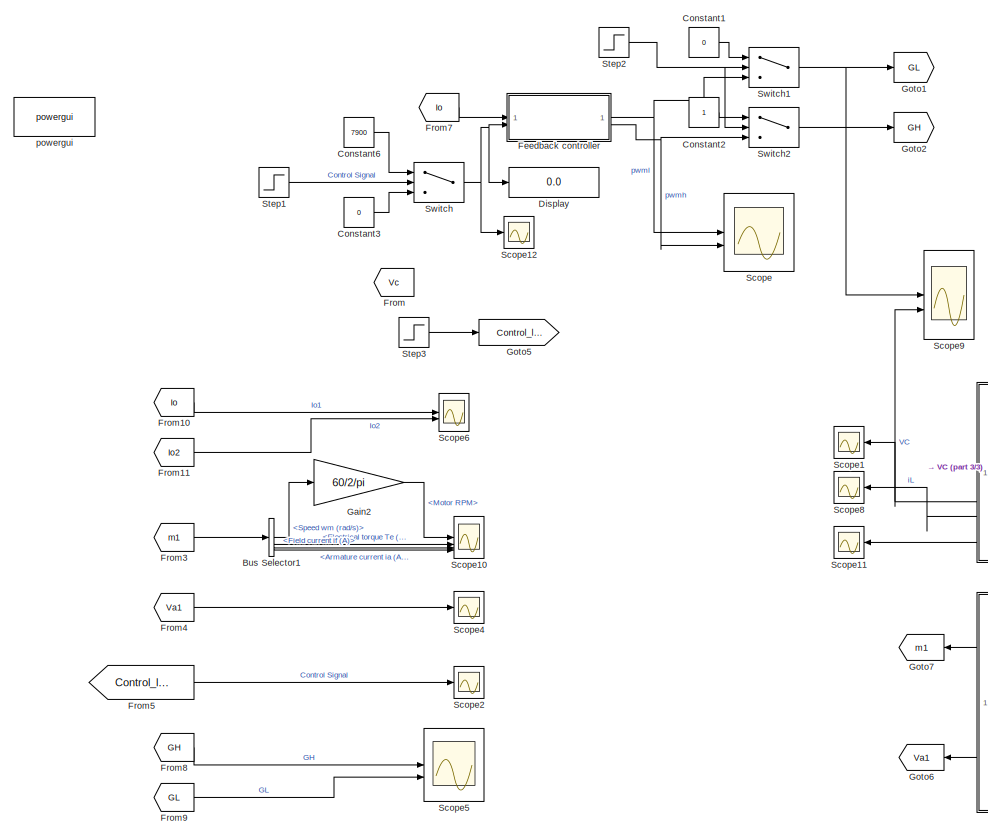
[diagram: root canvas - part 1/3, top left region]
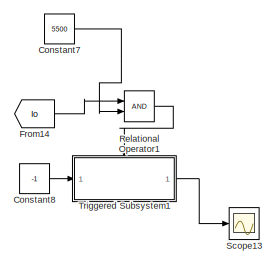
[diagram: root canvas - part 2/3, top right region]
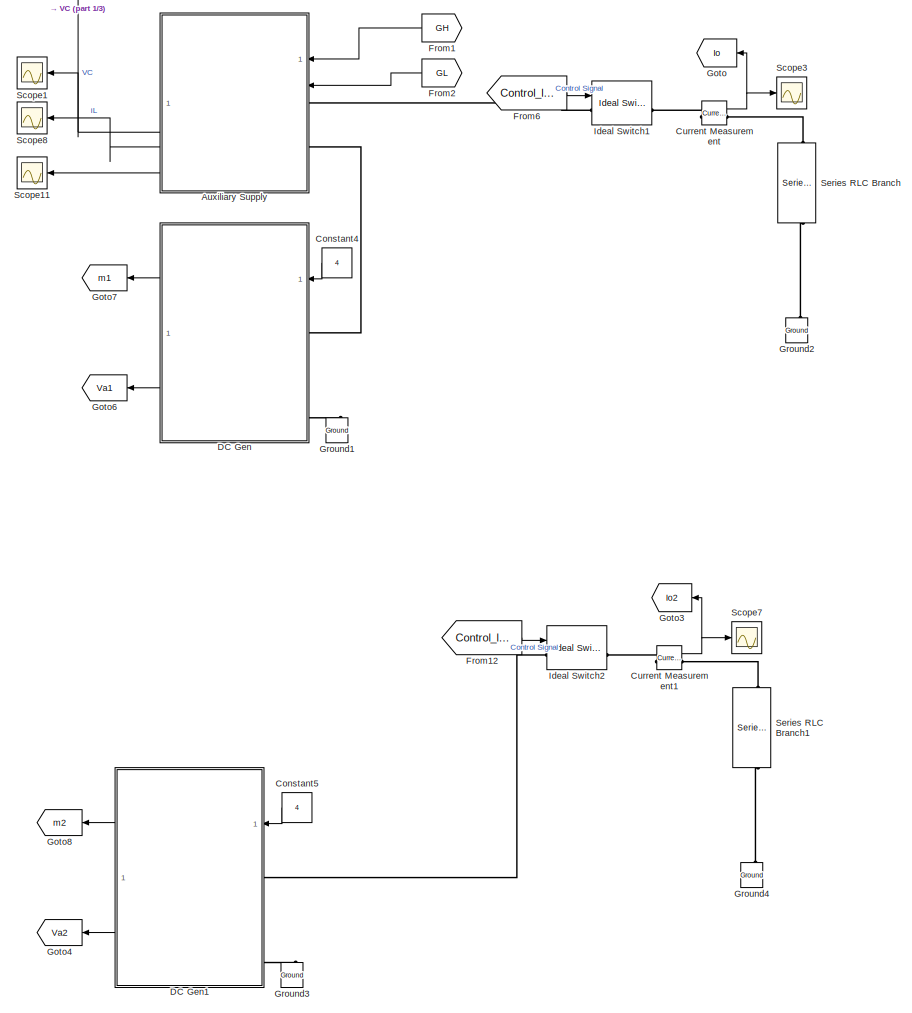
[diagram: root canvas - part 3/3, central region]
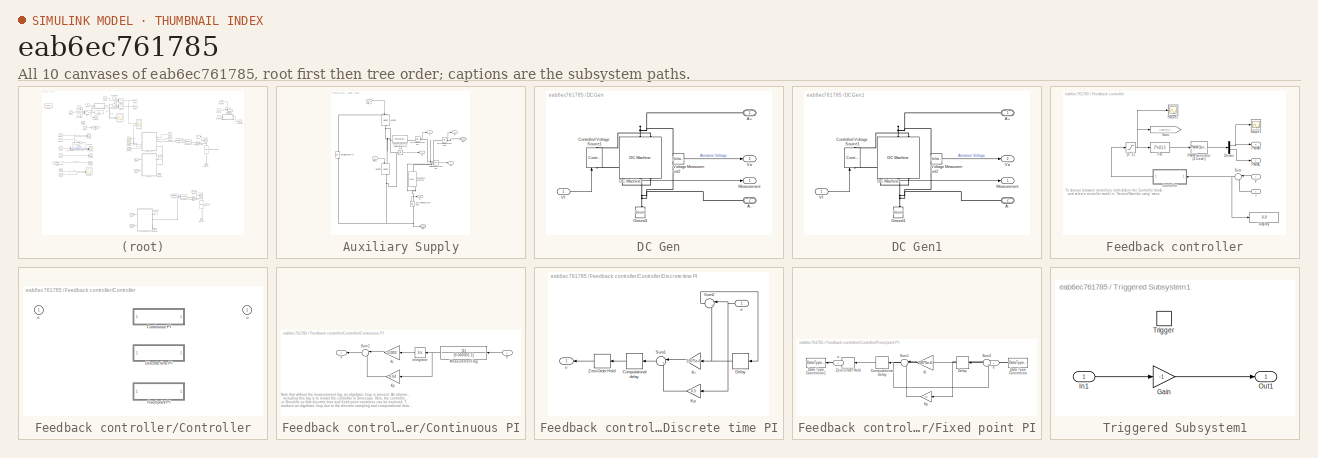
[diagram: thumbnail index - all 10 canvases of the model, root first then tree order]
MODEL slx_eab6ec761785
KIND model
CONFIG AbsTol = auto
CONFIG EnableMultiTasking = off
CONFIG FixedStep = auto
CONFIG MaxStep = auto
CONFIG MinStep = auto
CONFIG RelTol = 1e-3
CONFIG SampleTimeConstraint = Unconstrained
CONFIG SolverName = VariableStepAuto
CONFIG StartTime = 0.0
CONFIG StopTime = 20
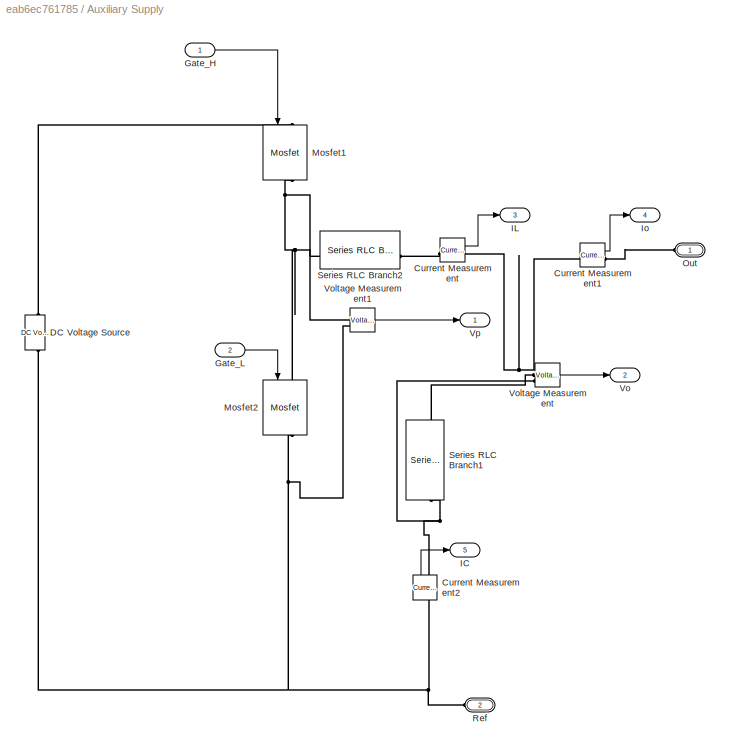
BLOCK [SubSystem] Auxiliary Supply
  NameLocation = top
BLOCK [Reference] Auxiliary Supply/Current Measurement  REF=spsCurrentMeasurementLib/Current Measurement
  LibrarySourceBlock = sps_lib/Sensors and Measurements/Current Measurement
  SourceBlock = spsCurrentMeasurementLib/Current Measurement
  SourceType = Current Measurement
  UserDataPersistent = on
BLOCK [Reference] Auxiliary Supply/Current Measurement1  REF=spsCurrentMeasurementLib/Current Measurement
  LibrarySourceBlock = sps_lib/Sensors and Measurements/Current Measurement
  SourceBlock = spsCurrentMeasurementLib/Current Measurement
  SourceType = Current Measurement
  UserDataPersistent = on
BLOCK [Reference] Auxiliary Supply/Current Measurement2  REF=spsCurrentMeasurementLib/Current Measurement
  LibrarySourceBlock = sps_lib/Sensors and Measurements/Current Measurement
  NameLocation = right
  SourceBlock = spsCurrentMeasurementLib/Current Measurement
  SourceType = Current Measurement
  UserDataPersistent = on
BLOCK [Reference] Auxiliary Supply/DC Voltage Source  REF=spsDCVoltageSourceLib/DC Voltage Source
  LibrarySourceBlock = sps_lib/Sources/DC Voltage Source
  SourceBlock = spsDCVoltageSourceLib/DC Voltage Source
  SourceType = DC Voltage Source
BLOCK [Inport] Auxiliary Supply/Gate_H
BLOCK [Inport] Auxiliary Supply/Gate_L
  Port = 2
BLOCK [Outport] Auxiliary Supply/IC
  Port = 5
BLOCK [Outport] Auxiliary Supply/IL
  Port = 3
BLOCK [Outport] Auxiliary Supply/Io
  Port = 4
BLOCK [Reference] Auxiliary Supply/Mosfet1  REF=spsMosfetLib/Mosfet
  NameLocation = left
  SourceBlock = spsMosfetLib/Mosfet
  SourceType = Mosfet
BLOCK [Reference] Auxiliary Supply/Mosfet2  REF=spsMosfetLib/Mosfet
  NameLocation = left
  SourceBlock = spsMosfetLib/Mosfet
  SourceType = Mosfet
BLOCK [PMIOPort] Auxiliary Supply/Out
  NameLocation = top
  Side = Left
BLOCK [PMIOPort] Auxiliary Supply/Ref
  NameLocation = top
  Port = 2
  Side = Left
BLOCK [Reference] Auxiliary Supply/Series RLC Branch1  REF=spsSeriesRLCBranchLib/Series RLC Branch
  LibrarySourceBlock = sps_lib/Passives/Series RLC Branch
  NameLocation = left
  SourceBlock = spsSeriesRLCBranchLib/Series RLC Branch
  SourceType = Series RLC Branch
BLOCK [Reference] Auxiliary Supply/Series RLC Branch2  REF=spsSeriesRLCBranchLib/Series RLC Branch
  LibrarySourceBlock = sps_lib/Passives/Series RLC Branch
  SourceBlock = spsSeriesRLCBranchLib/Series RLC Branch
  SourceType = Series RLC Branch
BLOCK [Outport] Auxiliary Supply/Vo
  Port = 2
BLOCK [Reference] Auxiliary Supply/Voltage Measurement  REF=spsVoltageMeasurementLib/Voltage Measurement
  LibrarySourceBlock = sps_lib/Sensors and Measurements/Voltage Measurement
  SourceBlock = spsVoltageMeasurementLib/Voltage Measurement
  SourceType = Voltage Measurement
  UserDataPersistent = on
BLOCK [Reference] Auxiliary Supply/Voltage Measurement1  REF=spsVoltageMeasurementLib/Voltage Measurement
  LibrarySourceBlock = sps_lib/Sensors and Measurements/Voltage Measurement
  SourceBlock = spsVoltageMeasurementLib/Voltage Measurement
  SourceType = Voltage Measurement
  UserDataPersistent = on
BLOCK [Outport] Auxiliary Supply/Vp
BLOCK [BusSelector] Bus Selector1
  OutputSignals = Speed wm (rad/s),Electrical torque Te (n m),Field current if (A),Armature current ia (A)
BLOCK [Constant] Constant1
  Value = 0
BLOCK [Constant] Constant2
BLOCK [Constant] Constant3
  Value = 0
BLOCK [Constant] Constant4
  NameLocation = top
  Value = 4
BLOCK [Constant] Constant5
  NameLocation = top
  Value = 4
BLOCK [Constant] Constant6
  Value = 7900
BLOCK [Constant] Constant7
  Value = 5500
BLOCK [Constant] Constant8
  Value = -1
BLOCK [Reference] Current Measurement  REF=spsCurrentMeasurementLib/Current Measurement
  LibrarySourceBlock = sps_lib/Sensors and Measurements/Current Measurement
  SourceBlock = spsCurrentMeasurementLib/Current Measurement
  SourceType = Current Measurement
  UserDataPersistent = on
BLOCK [Reference] Current Measurement1  REF=spsCurrentMeasurementLib/Current Measurement
  LibrarySourceBlock = sps_lib/Sensors and Measurements/Current Measurement
  SourceBlock = spsCurrentMeasurementLib/Current Measurement
  SourceType = Current Measurement
  UserDataPersistent = on
BLOCK [SubSystem] DC Gen
  NameLocation = top
BLOCK [PMIOPort] DC Gen/A+
  NameLocation = top
  Side = Left
BLOCK [PMIOPort] DC Gen/A-
  NameLocation = top
  Port = 2
  Side = Left
BLOCK [Reference] DC Gen/Controlled Voltage Source1  REF=spsControlledVoltageSourceLib/Controlled Voltage Source
  LibrarySourceBlock = sps_lib/Sources/Controlled Voltage Source
  NameLocation = right
  SourceBlock = spsControlledVoltageSourceLib/Controlled Voltage Source
  SourceType = Controlled Voltage Source
BLOCK [Reference] DC Gen/DC Machine1  REF=spsDCMachineLib/DC Machine
  LibrarySourceBlock = sps_lib/Electrical Machines/DC Machine
  NameLocation = left
  SourceBlock = spsDCMachineLib/DC Machine
  SourceType = DC machine
BLOCK [Reference] DC Gen/Ground1  REF=spsGroundLib/Ground
  LibrarySourceBlock = sps_lib/Utilities/Ground
  NameLocation = right
  SourceBlock = spsGroundLib/Ground
  SourceType = Ground
BLOCK [Outport] DC Gen/Measurement
BLOCK [Outport] DC Gen/Va
  Port = 2
BLOCK [Inport] DC Gen/Vf
BLOCK [Reference] DC Gen/Voltage Measurement2  REF=spsVoltageMeasurementLib/Voltage Measurement
  LibrarySourceBlock = sps_lib/Sensors and Measurements/Voltage Measurement
  SourceBlock = spsVoltageMeasurementLib/Voltage Measurement
  SourceType = Voltage Measurement
  UserDataPersistent = on
BLOCK [SubSystem] DC Gen1
  NameLocation = top
BLOCK [PMIOPort] DC Gen1/A+
  NameLocation = top
  Side = Left
BLOCK [PMIOPort] DC Gen1/A-
  NameLocation = top
  Port = 2
  Side = Left
BLOCK [Reference] DC Gen1/Controlled Voltage Source1  REF=spsControlledVoltageSourceLib/Controlled Voltage Source
  LibrarySourceBlock = sps_lib/Sources/Controlled Voltage Source
  NameLocation = right
  SourceBlock = spsControlledVoltageSourceLib/Controlled Voltage Source
  SourceType = Controlled Voltage Source
BLOCK [Reference] DC Gen1/DC Machine1  REF=spsDCMachineLib/DC Machine
  LibrarySourceBlock = sps_lib/Electrical Machines/DC Machine
  NameLocation = left
  SourceBlock = spsDCMachineLib/DC Machine
  SourceType = DC machine
BLOCK [Reference] DC Gen1/Ground1  REF=spsGroundLib/Ground
  LibrarySourceBlock = sps_lib/Utilities/Ground
  NameLocation = right
  SourceBlock = spsGroundLib/Ground
  SourceType = Ground
BLOCK [Outport] DC Gen1/Measurement
BLOCK [Outport] DC Gen1/Va
  Port = 2
BLOCK [Inport] DC Gen1/Vf
BLOCK [Reference] DC Gen1/Voltage Measurement2  REF=spsVoltageMeasurementLib/Voltage Measurement
  LibrarySourceBlock = sps_lib/Sensors and Measurements/Voltage Measurement
  SourceBlock = spsVoltageMeasurementLib/Voltage Measurement
  SourceType = Voltage Measurement
  UserDataPersistent = on
BLOCK [Display] Display
  Decimation = 1
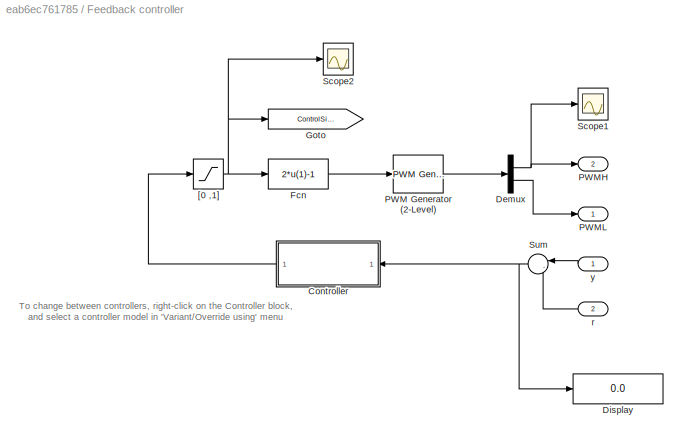
BLOCK [SubSystem] Feedback controller
  NameLocation = top
BLOCK [SubSystem] Feedback controller/Controller
  AttributesFormatString = %<BlockChoice>
  LabelModeActiveChoice = Variant1
  Variant = on
  VariantControlMode = label
BLOCK [SubSystem] Feedback controller/Controller/Continuous PI
  VariantControl = Variant1
BLOCK [Integrator] Feedback controller/Controller/Continuous PI/Integrator
BLOCK [Gain] Feedback controller/Controller/Continuous PI/Ki
  Gain = 0.003
BLOCK [Gain] Feedback controller/Controller/Continuous PI/Kp
  Gain = 0.04
BLOCK [TransferFcn] Feedback controller/Controller/Continuous PI/Measurement lag
  Denominator = [0.000001 1]
BLOCK [Sum] Feedback controller/Controller/Continuous PI/Sum1
  InputSameDT = on
  Inputs = |++
  OutDataTypeStr = Inherit: Same as first input
  SaturateOnIntegerOverflow = on
BLOCK [Inport] Feedback controller/Controller/Continuous PI/e
BLOCK [Outport] Feedback controller/Controller/Continuous PI/u
  VectorParamsAs1DForOutWhenUnconnected = off
BLOCK [SubSystem] Feedback controller/Controller/Discrete time PI
  VariantControl = Variant2
BLOCK [Delay] Feedback controller/Controller/Discrete time PI/Computational delay
  DelayLength = 1
  InputPortMap = u0
  SampleTime = 5e-6
BLOCK [Delay] Feedback controller/Controller/Discrete time PI/Delay
  DelayLength = 1
  InputPortMap = u0
  SampleTime = 5e-6
BLOCK [Gain] Feedback controller/Controller/Discrete time PI/Ki
  Gain = 200*5e-6
BLOCK [Gain] Feedback controller/Controller/Discrete time PI/Kp
  Gain = 0.5
BLOCK [Sum] Feedback controller/Controller/Discrete time PI/Sum1
  InputSameDT = on
  Inputs = |++
  OutDataTypeStr = Inherit: Same as first input
  SaturateOnIntegerOverflow = on
BLOCK [Sum] Feedback controller/Controller/Discrete time PI/Sum2
  InputSameDT = on
  Inputs = |++
  OutDataTypeStr = Inherit: Same as first input
  SaturateOnIntegerOverflow = on
BLOCK [ZeroOrderHold] Feedback controller/Controller/Discrete time PI/Zero-Order Hold
  SampleTime = 5e-6
BLOCK [Inport] Feedback controller/Controller/Discrete time PI/e
BLOCK [Outport] Feedback controller/Controller/Discrete time PI/u
  VectorParamsAs1DForOutWhenUnconnected = off
BLOCK [SubSystem] Feedback controller/Controller/Fixed point PI
  MinMaxOverflowLogging = MinMaxAndOverflow
  VariantControl = Variant3
BLOCK [Delay] Feedback controller/Controller/Fixed point PI/Computational delay
  DelayLength = 1
  InputPortMap = u0
  SampleTime = 5e-6
BLOCK [DataTypeConversion] Feedback controller/Controller/Fixed point PI/Data Type Conversion
  OutDataTypeStr = fixdt(1,16,11)
  RndMeth = Nearest
  SaturateOnIntegerOverflow = off
BLOCK [DataTypeConversion] Feedback controller/Controller/Fixed point PI/Data Type Conversion1
  OutDataTypeStr = double
  RndMeth = Nearest
  SaturateOnIntegerOverflow = off
BLOCK [Delay] Feedback controller/Controller/Fixed point PI/Delay
  DelayLength = 1
  InputPortMap = u0
  SampleTime = 5e-6
BLOCK [Gain] Feedback controller/Controller/Fixed point PI/Ki
  Gain = 200*5e-6
  OutDataTypeStr = fixdt(1,16,13)
  RndMeth = Nearest
BLOCK [Gain] Feedback controller/Controller/Fixed point PI/Kp
  Gain = 0.5
  OutDataTypeStr = fixdt(1,16,9)
  RndMeth = Nearest
BLOCK [Sum] Feedback controller/Controller/Fixed point PI/Sum1
  Inputs = |++
  SaturateOnIntegerOverflow = on
BLOCK [Sum] Feedback controller/Controller/Fixed point PI/Sum2
  InputSameDT = on
  Inputs = |++
  OutDataTypeStr = Inherit: Same as first input
  SaturateOnIntegerOverflow = on
BLOCK [ZeroOrderHold] Feedback controller/Controller/Fixed point PI/Zero-Order Hold
  SampleTime = 5e-6
BLOCK [Inport] Feedback controller/Controller/Fixed point PI/e
BLOCK [Outport] Feedback controller/Controller/Fixed point PI/u
  VectorParamsAs1DForOutWhenUnconnected = off
BLOCK [Inport] Feedback controller/Controller/e
BLOCK [Outport] Feedback controller/Controller/u
  VectorParamsAs1DForOutWhenUnconnected = off
BLOCK [Demux] Feedback controller/Demux
  Outputs = 2
BLOCK [Display] Feedback controller/Display
  Decimation = 1
BLOCK [Fcn] Feedback controller/Fcn
  Expr = 2*u(1)-1
BLOCK [Goto] Feedback controller/Goto
  GotoTag = ControlSignal
  TagVisibility = global
BLOCK [Reference] Feedback controller/PWM Generator (2-Level)  REF=spsPWMGenerator2LevelLib/PWM Generator
(2-Level)
  SourceBlock = spsPWMGenerator2LevelLib/PWM Generator\n(2-Level)
  SourceType = PWM Generator (2-Level)
BLOCK [Outport] Feedback controller/PWMH
  Port = 2
  VectorParamsAs1DForOutWhenUnconnected = off
BLOCK [Outport] Feedback controller/PWML
  VectorParamsAs1DForOutWhenUnconnected = off
BLOCK [Scope] Feedback controller/Scope1
  Floating = off
  NumInputPorts = 1
  ScopeSpecificationString = Simulink.scopes.TimeScopeBlockCfg('CurrentConfiguration', extmgr.ConfigurationSet(extmgr.Configuration('Core','General UI',true),extmgr.Configuration('Core','Source UI',true),extmgr.Configuration('Sources','WiredSimulink',true,'DataLoggingVariableName','ScopeData7'),extmgr.Configuration('Visuals','Time Domain',true,'SerializedDisplays',{struct('MinYLimReal','-0.125','MaxYLimReal','1.125','YLabelRe...<+1398ch>
BLOCK [Scope] Feedback controller/Scope2
  Floating = off
  NumInputPorts = 1
  ScopeSpecificationString = Simulink.scopes.TimeScopeBlockCfg('CurrentConfiguration', extmgr.ConfigurationSet(extmgr.Configuration('Core','General UI',true),extmgr.Configuration('Core','Source UI',true),extmgr.Configuration('Sources','WiredSimulink',true,'DataLoggingVariableName','ScopeData10'),extmgr.Configuration('Visuals','Time Domain',true,'SerializedDisplays',{struct('MinYLimReal','-0.02578','MaxYLimReal','0.23204','YLa...<+1413ch>
BLOCK [Sum] Feedback controller/Sum
  InputSameDT = on
  Inputs = |-+
  OutDataTypeStr = Inherit: Same as first input
  SaturateOnIntegerOverflow = on
BLOCK [Saturate] Feedback controller/[0 ,1]
  LowerLimit = 0
  UpperLimit = 1
BLOCK [Inport] Feedback controller/r
  Port = 2
BLOCK [Inport] Feedback controller/y
BLOCK [From] From
  GotoTag = Vc
BLOCK [From] From1
  GotoTag = GH
  NameLocation = top
BLOCK [From] From10
  GotoTag = Io
BLOCK [From] From11
  GotoTag = Io2
BLOCK [From] From12
  GotoTag = Control_load
BLOCK [From] From14
  GotoTag = Io
BLOCK [From] From2
  GotoTag = GL
  NameLocation = top
BLOCK [From] From3
  GotoTag = m1
BLOCK [From] From4
  GotoTag = Va1
BLOCK [From] From5
  GotoTag = Control_load
BLOCK [From] From6
  GotoTag = Control_load
BLOCK [From] From7
  GotoTag = Io
BLOCK [From] From8
  GotoTag = GH
BLOCK [From] From9
  GotoTag = GL
BLOCK [Gain] Gain2
  Gain = 60/2/pi
BLOCK [Goto] Goto
  GotoTag = Io
BLOCK [Goto] Goto1
  GotoTag = GL
BLOCK [Goto] Goto2
  GotoTag = GH
BLOCK [Goto] Goto3
  GotoTag = Io2
BLOCK [Goto] Goto4
  GotoTag = Va2
  NameLocation = top
BLOCK [Goto] Goto5
  GotoTag = Control_load
BLOCK [Goto] Goto6
  GotoTag = Va1
  NameLocation = top
BLOCK [Goto] Goto7
  GotoTag = m1
  NameLocation = top
BLOCK [Goto] Goto8
  GotoTag = m2
  NameLocation = top
BLOCK [Reference] Ground1  REF=spsGroundLib/Ground
  LibrarySourceBlock = sps_lib/Utilities/Ground
  NameLocation = right
  SourceBlock = spsGroundLib/Ground
  SourceType = Ground
BLOCK [Reference] Ground2  REF=spsGroundLib/Ground
  LibrarySourceBlock = sps_lib/Utilities/Ground
  NameLocation = right
  SourceBlock = spsGroundLib/Ground
  SourceType = Ground
BLOCK [Reference] Ground3  REF=spsGroundLib/Ground
  LibrarySourceBlock = sps_lib/Utilities/Ground
  NameLocation = right
  SourceBlock = spsGroundLib/Ground
  SourceType = Ground
BLOCK [Reference] Ground4  REF=spsGroundLib/Ground
  LibrarySourceBlock = sps_lib/Utilities/Ground
  NameLocation = right
  SourceBlock = spsGroundLib/Ground
  SourceType = Ground
BLOCK [Reference] Ideal Switch1  REF=spsIdealSwitchLib/Ideal Switch
  LibrarySourceBlock = sps_lib/Power Electronics/Ideal Switch
  SourceBlock = spsIdealSwitchLib/Ideal Switch
  SourceType = Ideal Switch
BLOCK [Reference] Ideal Switch2  REF=spsIdealSwitchLib/Ideal Switch
  LibrarySourceBlock = sps_lib/Power Electronics/Ideal Switch
  SourceBlock = spsIdealSwitchLib/Ideal Switch
  SourceType = Ideal Switch
BLOCK [RelationalOperator] Relational Operator1
  InputSameDT = off
  OutDataTypeStr = boolean
  RndMeth = Simplest
BLOCK [Scope] Scope
  Floating = off
  NumInputPorts = 2
  ScopeSpecificationString = Simulink.scopes.TimeScopeBlockCfg('CurrentConfiguration', extmgr.ConfigurationSet(extmgr.Configuration('Core','General UI',true),extmgr.Configuration('Core','Source UI',true),extmgr.Configuration('Sources','WiredSimulink',true,'DataLoggingVariableName','ScopeData1'),extmgr.Configuration('Visuals','Time Domain',true,'SerializedDisplays',{struct('MinYLimReal','-0.125','MaxYLimReal','1.125','YLabelRe...<+1433ch>
BLOCK [Scope] Scope1
  Floating = off
  NameLocation = top
  NumInputPorts = 1
  ScopeSpecificationString = Simulink.scopes.TimeScopeBlockCfg('CurrentConfiguration', extmgr.ConfigurationSet(extmgr.Configuration('Core','General UI',true),extmgr.Configuration('Core','Source UI',true),extmgr.Configuration('Sources','WiredSimulink',true,'DataLoggingVariableName','ScopeData2'),extmgr.Configuration('Visuals','Time Domain',true,'SerializedDisplays',{struct('MinYLimReal','-228.16468','MaxYLimReal','1136.63704',...<+1421ch>
BLOCK [Scope] Scope10
  Floating = off
  NumInputPorts = 4
  ScopeSpecificationString = Simulink.scopes.TimeScopeBlockCfg('CurrentConfiguration', extmgr.ConfigurationSet(extmgr.Configuration('Core','General UI',true,'FigureColor',[0 0 0]),extmgr.Configuration('Core','Source UI',true),extmgr.Configuration('Sources','WiredSimulink',true,'DataLoggingVariableName','ScopeData9'),extmgr.Configuration('Visuals','Time Domain',true,'SerializedDisplays',{struct('MinYLimReal','-1910.47474','Max...<+3564ch>
BLOCK [Scope] Scope11
  Floating = off
  NameLocation = top
  NumInputPorts = 1
  ScopeSpecificationString = Simulink.scopes.TimeScopeBlockCfg('CurrentConfiguration', extmgr.ConfigurationSet(extmgr.Configuration('Core','General UI',true),extmgr.Configuration('Core','Source UI',true),extmgr.Configuration('Sources','WiredSimulink',true,'DataLoggingVariableName','ScopeData1'),extmgr.Configuration('Visuals','Time Domain',true,'SerializedDisplays',{struct('MinYLimReal','-5657.73472','MaxYLimReal','7168.65965'...<+1474ch>
BLOCK [Scope] Scope12
  Floating = off
  NumInputPorts = 1
  ScopeSpecificationString = Simulink.scopes.TimeScopeBlockCfg('CurrentConfiguration', extmgr.ConfigurationSet(extmgr.Configuration('Core','General UI',true),extmgr.Configuration('Core','Source UI',true),extmgr.Configuration('Sources','WiredSimulink',true,'DataLoggingVariableName','ScopeData14'),extmgr.Configuration('Visuals','Time Domain',true,'SerializedDisplays',{struct('MinYLimReal','-750.00000','MaxYLimReal','6750.00000'...<+1414ch>
BLOCK [Scope] Scope13
  Floating = off
  NumInputPorts = 1
  ScopeSpecificationString = Simulink.scopes.TimeScopeBlockCfg('CurrentConfiguration', extmgr.ConfigurationSet(extmgr.Configuration('Core','General UI',true),extmgr.Configuration('Core','Source UI',true),extmgr.Configuration('Sources','WiredSimulink',true,'DataLoggingVariableName','ScopeData15'),extmgr.Configuration('Visuals','Time Domain',true,'SerializedDisplays',{struct('MinYLimReal','-0.125','MaxYLimReal','1.125','YLabelR...<+1393ch>
BLOCK [Scope] Scope2
  Floating = off
  NumInputPorts = 1
  ScopeSpecificationString = Simulink.scopes.TimeScopeBlockCfg('CurrentConfiguration', extmgr.ConfigurationSet(extmgr.Configuration('Core','General UI',true),extmgr.Configuration('Core','Source UI',true),extmgr.Configuration('Sources','WiredSimulink',true,'DataLoggingVariableName','ScopeData4'),extmgr.Configuration('Visuals','Time Domain',true,'SerializedDisplays',{struct('MinYLimReal','-0.125','MaxYLimReal','1.125','YLabelRe...<+1359ch>
BLOCK [Scope] Scope3
  Floating = off
  NumInputPorts = 1
  ScopeSpecificationString = Simulink.scopes.TimeScopeBlockCfg('CurrentConfiguration', extmgr.ConfigurationSet(extmgr.Configuration('Core','General UI',true),extmgr.Configuration('Core','Source UI',true),extmgr.Configuration('Sources','WiredSimulink',true,'DataLoggingVariableName','ScopeData3'),extmgr.Configuration('Visuals','Time Domain',true,'SerializedDisplays',{struct('MinYLimReal','-968.63627','MaxYLimReal','6716.00738',...<+1438ch>
BLOCK [Scope] Scope4
  Floating = off
  NumInputPorts = 1
  ScopeSpecificationString = Simulink.scopes.TimeScopeBlockCfg('CurrentConfiguration', extmgr.ConfigurationSet(extmgr.Configuration('Core','General UI',true),extmgr.Configuration('Core','Source UI',true),extmgr.Configuration('Sources','WiredSimulink',true,'DataLoggingVariableName','ScopeData5'),extmgr.Configuration('Visuals','Time Domain',true,'SerializedDisplays',{struct('MinYLimReal','-1251.88989','MaxYLimReal','1264.07388'...<+1469ch>
BLOCK [Scope] Scope5
  Floating = off
  NumInputPorts = 2
  ScopeSpecificationString = Simulink.scopes.TimeScopeBlockCfg('CurrentConfiguration', extmgr.ConfigurationSet(extmgr.Configuration('Core','General UI',true),extmgr.Configuration('Core','Source UI',true),extmgr.Configuration('Sources','WiredSimulink',true,'DataLoggingVariableName','ScopeData6'),extmgr.Configuration('Visuals','Time Domain',true,'SerializedDisplays',{struct('MinYLimReal','-0.125','MaxYLimReal','1.125','YLabelRe...<+1396ch>
BLOCK [Scope] Scope6
  Floating = off
  NumInputPorts = 2
  ScopeSpecificationString = Simulink.scopes.TimeScopeBlockCfg('CurrentConfiguration', extmgr.ConfigurationSet(extmgr.Configuration('Core','General UI',true),extmgr.Configuration('Core','Source UI',true),extmgr.Configuration('Sources','WiredSimulink',true,'DataLoggingVariableName','ScopeData2'),extmgr.Configuration('Visuals','Time Domain',true,'SerializedDisplays',{struct('MinYLimReal','-1516.55121','MaxYLimReal','8845.13879'...<+1465ch>
BLOCK [Scope] Scope7
  Floating = off
  NumInputPorts = 1
  ScopeSpecificationString = Simulink.scopes.TimeScopeBlockCfg('CurrentConfiguration', extmgr.ConfigurationSet(extmgr.Configuration('Core','General UI',true),extmgr.Configuration('Core','Source UI',true),extmgr.Configuration('Sources','WiredSimulink',true,'DataLoggingVariableName','ScopeData10'),extmgr.Configuration('Visuals','Time Domain',true,'SerializedDisplays',{struct('MinYLimReal','-268.77301','MaxYLimReal','2418.95712'...<+1440ch>
BLOCK [Scope] Scope8
  Floating = off
  NameLocation = top
  NumInputPorts = 1
  ScopeSpecificationString = Simulink.scopes.TimeScopeBlockCfg('CurrentConfiguration', extmgr.ConfigurationSet(extmgr.Configuration('Core','General UI',true),extmgr.Configuration('Core','Source UI',true),extmgr.Configuration('Sources','WiredSimulink',true,'DataLoggingVariableName','ScopeData11'),extmgr.Configuration('Visuals','Time Domain',true,'SerializedDisplays',{struct('MinYLimReal','-6654.3487','MaxYLimReal','10315.24917...<+1428ch>
BLOCK [Scope] Scope9
  Floating = off
  NumInputPorts = 2
  ScopeSpecificationString = Simulink.scopes.TimeScopeBlockCfg('CurrentConfiguration', extmgr.ConfigurationSet(extmgr.Configuration('Core','General UI',true),extmgr.Configuration('Core','Source UI',true),extmgr.Configuration('Sources','WiredSimulink',true,'DataLoggingVariableName','ScopeData12'),extmgr.Configuration('Visuals','Time Domain',true,'SerializedDisplays',{struct('MinYLimReal','-0.125','MaxYLimReal','1.125','YLabelR...<+2021ch>
BLOCK [Reference] Series RLC Branch  REF=spsSeriesRLCBranchLib/Series RLC Branch
  LibrarySourceBlock = sps_lib/Passives/Series RLC Branch
  NameLocation = left
  SourceBlock = spsSeriesRLCBranchLib/Series RLC Branch
  SourceType = Series RLC Branch
BLOCK [Reference] Series RLC Branch1  REF=spsSeriesRLCBranchLib/Series RLC Branch
  LibrarySourceBlock = sps_lib/Passives/Series RLC Branch
  NameLocation = left
  SourceBlock = spsSeriesRLCBranchLib/Series RLC Branch
  SourceType = Series RLC Branch
BLOCK [Step] Step1
  SampleTime = 0
  Time = 10.2
  VectorParams1D = off
  ZeroCross = off
BLOCK [Step] Step2
  After = 0
  Before = 1
  SampleTime = 0
  Time = 10.2
  VectorParams1D = off
  ZeroCross = off
BLOCK [Step] Step3
  SampleTime = 0
  Time = 10
  VectorParams1D = off
  ZeroCross = off
BLOCK [Switch] Switch
  Criteria = u2 > Threshold
  InputSameDT = off
  SaturateOnIntegerOverflow = off
BLOCK [Switch] Switch1
  Criteria = u2 > Threshold
  InputSameDT = off
  SaturateOnIntegerOverflow = off
BLOCK [Switch] Switch2
  Criteria = u2 > Threshold
  InputSameDT = off
  SaturateOnIntegerOverflow = off
BLOCK [SubSystem] Triggered Subsystem1
  TreatAsAtomicUnit = on
BLOCK [Gain] Triggered Subsystem1/Gain
  Gain = -1
BLOCK [Inport] Triggered Subsystem1/In1
BLOCK [Outport] Triggered Subsystem1/Out1
BLOCK [TriggerPort] Triggered Subsystem1/Trigger
  StatesWhenEnabling = held
  VariantControl = (inherit)
BLOCK [Reference] powergui  REF=sps_lib/powergui
  LibrarySourceBlock = sps_lib/powergui
  Priority = 1
  SourceBlock = sps_lib/powergui
  SourceType = PSB option menu block
ANNOTATION Feedback controller: To change between controllers, right-click on the Controller block, and select a controller model in 'Variant/Override using' menu
ANNOTATION Feedback controller/Controller/Continuous PI: Note that without the measurement lag, an algebraic loop is present. An alternative to including this lag is to model the controller in Simscape. Here, the controller is implemented in Simulink so that discrete time and fixed point variations can be explored. These do not introduce an algebraic loop due to the discrete sampling and computational delay.
LINE Auxiliary Supply/Current Measurement1:1 -> Auxiliary Supply/Io:1
LINE Auxiliary Supply/Current Measurement2:1 -> Auxiliary Supply/IC:1
LINE Auxiliary Supply/Current Measurement:1 -> Auxiliary Supply/IL:1
LINE Auxiliary Supply/Gate_H:1 -> Auxiliary Supply/Mosfet1:1
LINE Auxiliary Supply/Gate_L:1 -> Auxiliary Supply/Mosfet2:1
LINE Auxiliary Supply/Voltage Measurement1:1 -> Auxiliary Supply/Vp:1
LINE Auxiliary Supply/Voltage Measurement:1 -> Auxiliary Supply/Vo:1
NET Auxiliary Supply:2 -> Scope1:1, Scope9:2
LINE Auxiliary Supply:3 -> Scope8:1
LINE Auxiliary Supply:5 -> Scope11:1
LINE Bus Selector1:1 -> Gain2:1
LINE Bus Selector1:2 -> Scope10:2
LINE Bus Selector1:3 -> Scope10:3
LINE Bus Selector1:4 -> Scope10:4
LINE Constant1:1 -> Switch1:1
LINE Constant2:1 -> Switch2:1
LINE Constant3:1 -> Switch:3
LINE Constant4:1 -> DC Gen:1
LINE Constant5:1 -> DC Gen1:1
LINE Constant6:1 -> Switch:1
LINE Constant7:1 -> Relational Operator1:2
LINE Constant8:1 -> Triggered Subsystem1:1
NET Current Measurement1:1 -> Goto3:1, Scope7:1
NET Current Measurement:1 -> Goto:1, Scope3:1
LINE DC Gen/DC Machine1:1 -> DC Gen/Measurement:1
LINE DC Gen/Vf:1 -> DC Gen/Controlled Voltage Source1:1
LINE DC Gen/Voltage Measurement2:1 -> DC Gen/Va:1
LINE DC Gen1/DC Machine1:1 -> DC Gen1/Measurement:1
LINE DC Gen1/Vf:1 -> DC Gen1/Controlled Voltage Source1:1
LINE DC Gen1/Voltage Measurement2:1 -> DC Gen1/Va:1
LINE DC Gen1:1 -> Goto8:1
LINE DC Gen1:2 -> Goto4:1
LINE DC Gen:1 -> Goto7:1
LINE DC Gen:2 -> Goto6:1
LINE Feedback controller/Controller/Continuous PI/Integrator:1 -> Feedback controller/Controller/Continuous PI/Ki:1
LINE Feedback controller/Controller/Continuous PI/Ki:1 -> Feedback controller/Controller/Continuous PI/Sum1:1
LINE Feedback controller/Controller/Continuous PI/Kp:1 -> Feedback controller/Controller/Continuous PI/Sum1:2
NET Feedback controller/Controller/Continuous PI/Measurement lag:1 -> Feedback controller/Controller/Continuous PI/Integrator:1, Feedback controller/Controller/Continuous PI/Kp:1
LINE Feedback controller/Controller/Continuous PI/Sum1:1 -> Feedback controller/Controller/Continuous PI/u:1
LINE Feedback controller/Controller/Continuous PI/e:1 -> Feedback controller/Controller/Continuous PI/Measurement lag:1
LINE Feedback controller/Controller/Discrete time PI/Computational delay:1 -> Feedback controller/Controller/Discrete time PI/Zero-Order Hold:1
NET Feedback controller/Controller/Discrete time PI/Delay:1 -> Feedback controller/Controller/Discrete time PI/Ki:1, Feedback controller/Controller/Discrete time PI/Sum2:2
LINE Feedback controller/Controller/Discrete time PI/Ki:1 -> Feedback controller/Controller/Discrete time PI/Sum1:1
LINE Feedback controller/Controller/Discrete time PI/Kp:1 -> Feedback controller/Controller/Discrete time PI/Sum1:2
LINE Feedback controller/Controller/Discrete time PI/Sum1:1 -> Feedback controller/Controller/Discrete time PI/Computational delay:1
LINE Feedback controller/Controller/Discrete time PI/Sum2:1 -> Feedback controller/Controller/Discrete time PI/Delay:1
LINE Feedback controller/Controller/Discrete time PI/Zero-Order Hold:1 -> Feedback controller/Controller/Discrete time PI/u:1
NET Feedback controller/Controller/Discrete time PI/e:1 -> Feedback controller/Controller/Discrete time PI/Kp:1, Feedback controller/Controller/Discrete time PI/Sum2:1
LINE Feedback controller/Controller/Fixed point PI/Computational delay:1 -> Feedback controller/Controller/Fixed point PI/Zero-Order Hold:1
LINE Feedback controller/Controller/Fixed point PI/Data Type Conversion1:1 -> Feedback controller/Controller/Fixed point PI/u:1
NET Feedback controller/Controller/Fixed point PI/Data Type Conversion:1 -> Feedback controller/Controller/Fixed point PI/Kp:1, Feedback controller/Controller/Fixed point PI/Sum2:1
NET Feedback controller/Controller/Fixed point PI/Delay:1 -> Feedback controller/Controller/Fixed point PI/Ki:1, Feedback controller/Controller/Fixed point PI/Sum2:2
LINE Feedback controller/Controller/Fixed point PI/Ki:1 -> Feedback controller/Controller/Fixed point PI/Sum1:1
LINE Feedback controller/Controller/Fixed point PI/Kp:1 -> Feedback controller/Controller/Fixed point PI/Sum1:2
LINE Feedback controller/Controller/Fixed point PI/Sum1:1 -> Feedback controller/Controller/Fixed point PI/Computational delay:1
LINE Feedback controller/Controller/Fixed point PI/Sum2:1 -> Feedback controller/Controller/Fixed point PI/Delay:1
LINE Feedback controller/Controller/Fixed point PI/Zero-Order Hold:1 -> Feedback controller/Controller/Fixed point PI/Data Type Conversion1:1
LINE Feedback controller/Controller/Fixed point PI/e:1 -> Feedback controller/Controller/Fixed point PI/Data Type Conversion:1
LINE Feedback controller/Controller:1 -> Feedback controller/[0 ,1]:1
NET Feedback controller/Demux:1 -> Feedback controller/PWMH:1, Feedback controller/Scope1:1
LINE Feedback controller/Demux:2 -> Feedback controller/PWML:1
LINE Feedback controller/Fcn:1 -> Feedback controller/PWM Generator (2-Level):1
LINE Feedback controller/PWM Generator (2-Level):1 -> Feedback controller/Demux:1
NET Feedback controller/Sum:1 -> Feedback controller/Controller:1, Feedback controller/Display:1
NET Feedback controller/[0 ,1]:1 -> Feedback controller/Fcn:1, Feedback controller/Goto:1, Feedback controller/Scope2:1
LINE Feedback controller/r:1 -> Feedback controller/Sum:2
LINE Feedback controller/y:1 -> Feedback controller/Sum:1
NET Feedback controller:1 -> Scope:1, Switch1:3
NET Feedback controller:2 -> Scope:2, Switch2:3
LINE From10:1 -> Scope6:1
LINE From11:1 -> Scope6:2
LINE From12:1 -> Ideal Switch2:1
LINE From14:1 -> Relational Operator1:1
LINE From1:1 -> Auxiliary Supply:1
LINE From2:1 -> Auxiliary Supply:2
LINE From3:1 -> Bus Selector1:1
LINE From4:1 -> Scope4:1
LINE From5:1 -> Scope2:1
LINE From6:1 -> Ideal Switch1:1
LINE From7:1 -> Feedback controller:1
LINE From8:1 -> Scope5:1
LINE From9:1 -> Scope5:2
LINE Gain2:1 -> Scope10:1
LINE Relational Operator1:1 -> Triggered Subsystem1:trigger
LINE Step1:1 -> Switch:2
NET Step2:1 -> Switch1:2, Switch2:2
LINE Step3:1 -> Goto5:1
NET Switch1:1 -> Goto1:1, Scope9:1
LINE Switch2:1 -> Goto2:1
NET Switch:1 -> Display:1, Feedback controller:2, Scope12:1
LINE Triggered Subsystem1/Gain:1 -> Triggered Subsystem1/Out1:1
LINE Triggered Subsystem1/In1:1 -> Triggered Subsystem1/Gain:1
LINE Triggered Subsystem1:1 -> Scope13:1
PNET net1: Auxiliary Supply/Current Measurement1:LConn1 -- Auxiliary Supply/Current Measurement:RConn1 -- Auxiliary Supply/Series RLC Branch1:LConn1 -- Auxiliary Supply/Voltage Measurement:LConn1
PLINE Auxiliary Supply/Current Measurement1:RConn1 -- Auxiliary Supply/Out:RConn1
PNET net2: Auxiliary Supply/Current Measurement2:LConn1 -- Auxiliary Supply/DC Voltage Source:LConn1 -- Auxiliary Supply/Mosfet2:RConn1 -- Auxiliary Supply/Ref:RConn1 -- Auxiliary Supply/Voltage Measurement1:LConn2
PNET net3: Auxiliary Supply/Current Measurement2:RConn1 -- Auxiliary Supply/Series RLC Branch1:RConn1 -- Auxiliary Supply/Voltage Measurement:LConn2
PLINE Auxiliary Supply/Current Measurement:LConn1 -- Auxiliary Supply/Series RLC Branch2:RConn1
PLINE Auxiliary Supply/DC Voltage Source:RConn1 -- Auxiliary Supply/Mosfet1:LConn1
PNET net4: Auxiliary Supply/Mosfet1:RConn1 -- Auxiliary Supply/Mosfet2:LConn1 -- Auxiliary Supply/Series RLC Branch2:LConn1 -- Auxiliary Supply/Voltage Measurement1:LConn1
PLINE Auxiliary Supply:LConn1 -- Ideal Switch1:LConn1
PLINE Auxiliary Supply:LConn2 -- DC Gen:LConn1
PLINE Current Measurement1:LConn1 -- Ideal Switch2:RConn1
PLINE Current Measurement1:RConn1 -- Series RLC Branch1:LConn1
PLINE Current Measurement:LConn1 -- Ideal Switch1:RConn1
PLINE Current Measurement:RConn1 -- Series RLC Branch:LConn1
PNET net5: DC Gen/A+:RConn1 -- DC Gen/DC Machine1:LConn1 -- DC Gen/Voltage Measurement2:LConn1
PNET net6: DC Gen/A-:RConn1 -- DC Gen/DC Machine1:RConn1 -- DC Gen/Ground1:LConn1 -- DC Gen/Voltage Measurement2:LConn2
PLINE DC Gen/Controlled Voltage Source1:LConn1 -- DC Gen/DC Machine1:RConn2
PLINE DC Gen/Controlled Voltage Source1:RConn1 -- DC Gen/DC Machine1:LConn2
PNET net7: DC Gen1/A+:RConn1 -- DC Gen1/DC Machine1:LConn1 -- DC Gen1/Voltage Measurement2:LConn1
PNET net8: DC Gen1/A-:RConn1 -- DC Gen1/DC Machine1:RConn1 -- DC Gen1/Ground1:LConn1 -- DC Gen1/Voltage Measurement2:LConn2
PLINE DC Gen1/Controlled Voltage Source1:LConn1 -- DC Gen1/DC Machine1:RConn2
PLINE DC Gen1/Controlled Voltage Source1:RConn1 -- DC Gen1/DC Machine1:LConn2
PLINE DC Gen1:LConn1 -- Ideal Switch2:LConn1
PLINE DC Gen1:LConn2 -- Ground3:LConn1
PLINE DC Gen:LConn2 -- Ground1:LConn1
PLINE Ground2:LConn1 -- Series RLC Branch:RConn1
PLINE Ground4:LConn1 -- Series RLC Branch1:RConn1
note: NET lines group one-source signal fan-out (src -> all destinations, sorted); 1:1 wires keep LINE; PNET lines group multi-terminal physical nets as a canonical sorted terminal list (undirected conserving connections); 2-terminal nets keep the pairwise PLINE form
